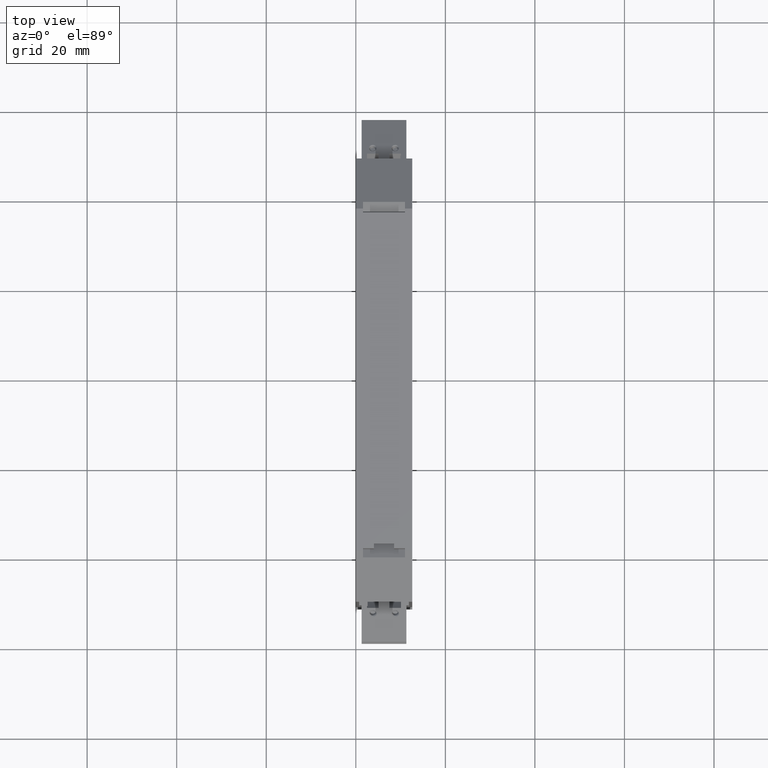
[diagram: clean part render]
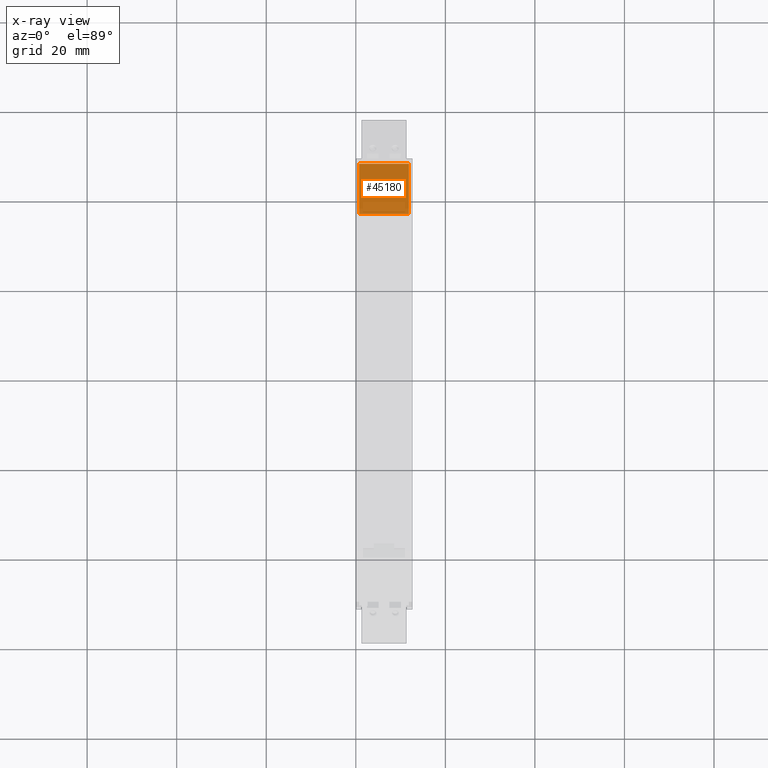
[diagram: x-ray — body ghosted, one internal face saturated and labeled with its STEP entity id]
A machine part, top view, then the same camera in x-ray: the body is ghosted and one INTERNAL B-rep face — a face not visible from any outside direction — is saturated and labeled: STEP entity #45180.
In plain terms, the highlighted planar face has unit normal (-0, 0.5445, 0.8388).
Its self-contained STEP definition (entity closure, byte-faithful):
#9920=CARTESIAN_POINT('',(11.8499992222009,99.0000000003221,
38.3317897318748));
#9930=VERTEX_POINT('',#9920);
#9960=CARTESIAN_POINT('',(8.79999999946697,99.0000000003221,
38.3317897318729));
#9970=DIRECTION('',(1.,-1.44715044762465E-24,6.29396449563815E-13));
#9980=VECTOR('',#9970,1.);
#9990=LINE('',#9960,#9980);
#10000=CARTESIAN_POINT('',(0.749999222530521,99.0000000003221,
38.3317897318678));
#10010=VERTEX_POINT('',#10000);
#10020=EDGE_CURVE('',#10010,#9930,#9990,.T.);
#44880=CARTESIAN_POINT('',(11.3499984449729,97.2556523937794,
39.4640234724474));
#44890=DIRECTION('',(-5.27933520743606E-13,0.544450007854237,
0.838793293337233));
#44900=DIRECTION('',(8.13351775150574E-13,-0.838793293337233,
0.544450007854237));
#44910=AXIS2_PLACEMENT_3D('',#44880,#44890,#44900);
#44920=PLANE('',#44910);
#44930=CARTESIAN_POINT('',(11.8499984450672,0.000184088243969427,
102.591305132207));
#44940=DIRECTION('',(-8.1334938784039E-13,0.838793293337233,
-0.544450007854237));
#44950=VECTOR('',#44940,1.);
#44960=LINE('',#44930,#44950);
#44970=CARTESIAN_POINT('',(11.8499992222119,87.6638861742534,
45.689916353374));
#44980=VERTEX_POINT('',#44970);
#44990=EDGE_CURVE('',#44980,#9930,#44960,.T.);
#45000=ORIENTED_EDGE('',*,*,#44990,.T.);
#45010=CARTESIAN_POINT('',(-7.77229642423549E-7,87.6638861742419,
45.689916353374));
#45020=DIRECTION('',(1.,9.69564701079104E-13,6.43920574064982E-17));
#45030=VECTOR('',#45020,1.);
#45040=LINE('',#45010,#45030);
#45050=CARTESIAN_POINT('',(0.74999922254152,87.6638861742426,
45.689916353374));
#45060=VERTEX_POINT('',#45050);
#45070=EDGE_CURVE('',#45060,#44980,#45040,.T.);
#45080=ORIENTED_EDGE('',*,*,#45070,.T.);
#45090=CARTESIAN_POINT('',(0.749998445396903,0.000184088243969427,
102.5913051322));
#45100=DIRECTION('',(8.13515921294083E-13,-0.838793293337233,
0.544450007854237));
#45110=VECTOR('',#45100,1.);
#45120=LINE('',#45090,#45110);
#45130=EDGE_CURVE('',#10010,#45060,#45120,.T.);
#45140=ORIENTED_EDGE('',*,*,#45130,.T.);
#45150=ORIENTED_EDGE('',*,*,#10020,.F.);
#45160=EDGE_LOOP('',(#45150,#45140,#45080,#45000));
#45170=FACE_OUTER_BOUND('',#45160,.T.);
#45180=ADVANCED_FACE('',(#45170),#44920,.T.);